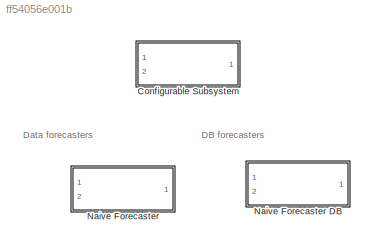
MODEL slx_ff54056e001b
KIND library
CONFIG AbsTol = auto
CONFIG FixedStep = auto
CONFIG MaxStep = auto
CONFIG MinStep = auto
CONFIG RelTol = 1e-3
CONFIG SampleTimeConstraint = Unconstrained
CONFIG Solver = ode45
CONFIG SolverMode = Auto
CONFIG SolverName = ode45
CONFIG StartTime = 0.0
CONFIG StopTime = 10.0
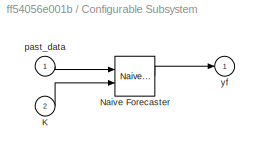
BLOCK [SubSystem] Configurable Subsystem
  BlockChoice = Naive Forecaster
  MemberBlocks = Naive Forecaster,Naive Forecaster DB
  Ports = [2, 1]
  RequestExecContextInheritance = off
  TemplateBlock = self
BLOCK [Inport] Configurable Subsystem/K
  IconDisplay = Port number
  Port = 2
BLOCK [Reference] Configurable Subsystem/Naive Forecaster  REF=libForecasters/Naive Forecaster
  FunctionWithSeparateData = off
  GeneratePreprocessorConditionals = off
  Ports = [2, 1]
  ShowPortLabels = FromPortIcon
  SourceBlock = libForecasters/Naive Forecaster
  SystemSampleTime = -1
BLOCK [Inport] Configurable Subsystem/past_data
  IconDisplay = Port number
BLOCK [Outport] Configurable Subsystem/yf
  IconDisplay = Port number
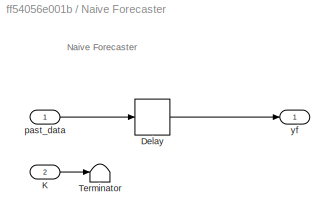
BLOCK [SubSystem] Naive Forecaster
  Ports = [2, 1]
  RequestExecContextInheritance = off
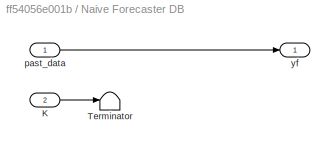
BLOCK [SubSystem] Naive Forecaster DB
  Ports = [2, 1]
  RequestExecContextInheritance = off
BLOCK [Inport] Naive Forecaster DB/K
  IconDisplay = Port number
  Port = 2
BLOCK [Terminator] Naive Forecaster DB/Terminator
BLOCK [Inport] Naive Forecaster DB/past_data
  IconDisplay = Port number
BLOCK [Outport] Naive Forecaster DB/yf
  IconDisplay = Port number
BLOCK [Delay] Naive Forecaster/Delay
  DelayLength = 1
  InitialCondition = 0
  InputPortMap = u0
  Ports = [1, 1]
BLOCK [Inport] Naive Forecaster/K
  IconDisplay = Port number
  Port = 2
BLOCK [Terminator] Naive Forecaster/Terminator
BLOCK [Inport] Naive Forecaster/past_data
  IconDisplay = Port number
BLOCK [Outport] Naive Forecaster/yf
  IconDisplay = Port number
ANNOTATION (root): DB forecasters
ANNOTATION (root): Data forecasters
ANNOTATION Naive Forecaster: Naive Forecaster
LINE Configurable Subsystem/K:1 -> Configurable Subsystem/Naive Forecaster:2
LINE Configurable Subsystem/Naive Forecaster:1 -> Configurable Subsystem/yf:1
LINE Configurable Subsystem/past_data:1 -> Configurable Subsystem/Naive Forecaster:1
LINE Naive Forecaster DB/K:1 -> Naive Forecaster DB/Terminator:1
LINE Naive Forecaster DB/past_data:1 -> Naive Forecaster DB/yf:1
LINE Naive Forecaster/Delay:1 -> Naive Forecaster/yf:1
LINE Naive Forecaster/K:1 -> Naive Forecaster/Terminator:1
LINE Naive Forecaster/past_data:1 -> Naive Forecaster/Delay:1
